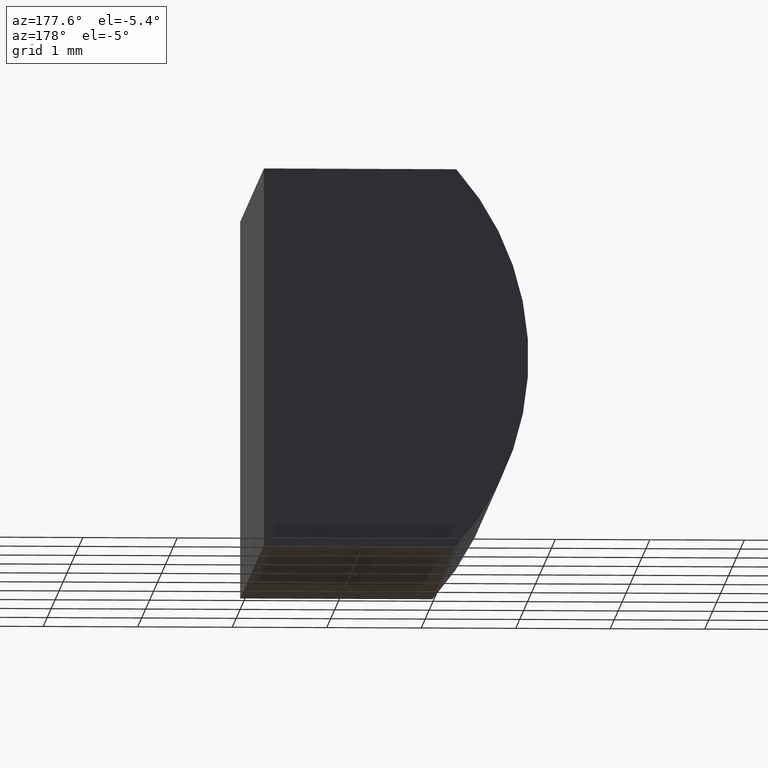
[diagram: clean part render]
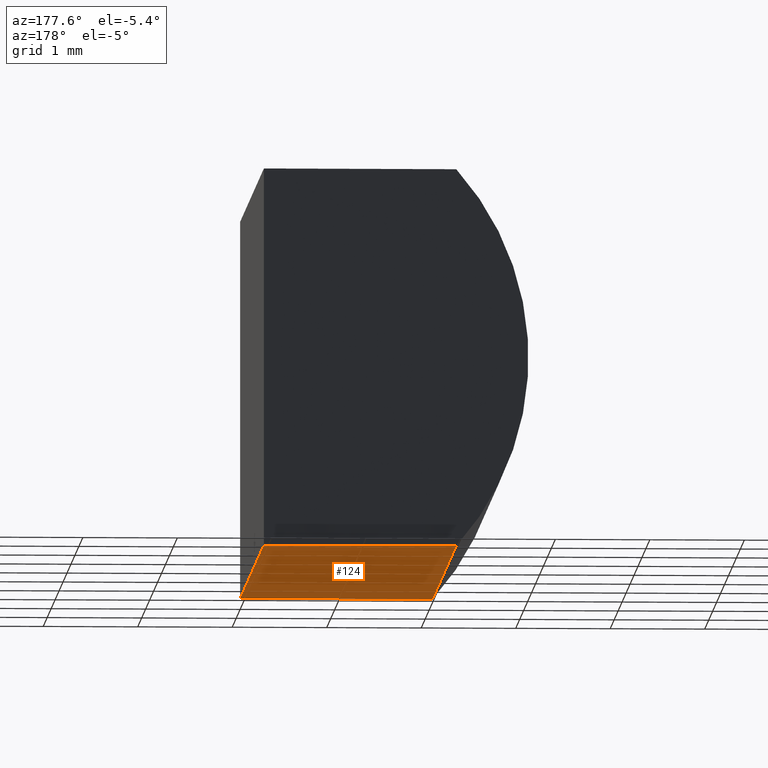
[diagram: same view with one face highlighted and labeled with its STEP entity id]
A machine part, auxiliary view. The second image highlights one B-rep face of the part: STEP entity #124.
In plain terms, the highlighted planar face has unit normal (0, -0, 1).
Its self-contained STEP definition (entity closure, byte-faithful):
#10 = DIRECTION ( 'NONE',  ( -0.0000000000000000000, -1.000000000000000000, -0.0000000000000000000 ) ) ;
#11 = CARTESIAN_POINT ( 'NONE',  ( 0.0000000000000000000, 0.0000000000000000000, 0.0000000000000000000 ) ) ;
#12 = VERTEX_POINT ( 'NONE', #79 ) ;
#22 = LINE ( 'NONE', #202, #25 ) ;
#25 = VECTOR ( 'NONE', #196, 1000.000000000000000 ) ;
#33 = DIRECTION ( 'NONE',  ( -1.000000000000000000, 0.0000000000000000000, 0.0000000000000000000 ) ) ;
#35 = AXIS2_PLACEMENT_3D ( 'NONE', #172, #56, #62 ) ;
#37 = PLANE ( 'NONE',  #35 ) ;
#40 = LINE ( 'NONE', #87, #63 ) ;
#50 = EDGE_CURVE ( 'NONE', #170, #122, #22, .T. ) ;
#54 = FACE_OUTER_BOUND ( 'NONE', #158, .T. ) ;
#56 = DIRECTION ( 'NONE',  ( 0.0000000000000000000, -0.0000000000000000000, 1.000000000000000000 ) ) ;
#62 = DIRECTION ( 'NONE',  ( 1.000000000000000000, 0.0000000000000000000, -0.0000000000000000000 ) ) ;
#63 = VECTOR ( 'NONE', #33, 1000.000000000000000 ) ;
#68 = CARTESIAN_POINT ( 'NONE',  ( -2.036067977499789200, 6.000000000000000000, 0.0000000000000000000 ) ) ;
#76 = CARTESIAN_POINT ( 'NONE',  ( -2.036067977499789200, 6.000000000000000000, 0.0000000000000000000 ) ) ;
#79 = CARTESIAN_POINT ( 'NONE',  ( 0.0000000000000000000, 6.000000000000000000, 0.0000000000000000000 ) ) ;
#86 = EDGE_CURVE ( 'NONE', #12, #170, #201, .T. ) ;
#87 = CARTESIAN_POINT ( 'NONE',  ( 0.0000000000000000000, 6.000000000000000000, 0.0000000000000000000 ) ) ;
#112 = LINE ( 'NONE', #76, #138 ) ;
#116 = CARTESIAN_POINT ( 'NONE',  ( -2.036067977499789200, 0.0000000000000000000, 0.0000000000000000000 ) ) ;
#120 = DIRECTION ( 'NONE',  ( -0.0000000000000000000, -1.000000000000000000, -0.0000000000000000000 ) ) ;
#122 = VERTEX_POINT ( 'NONE', #116 ) ;
#124 = ADVANCED_FACE ( 'NONE', ( #54 ), #37, .F. ) ;
#127 = CARTESIAN_POINT ( 'NONE',  ( 0.0000000000000000000, 6.000000000000000000, 0.0000000000000000000 ) ) ;
#132 = ORIENTED_EDGE ( 'NONE', *, *, #150, .F. ) ;
#138 = VECTOR ( 'NONE', #10, 1000.000000000000000 ) ;
#144 = ORIENTED_EDGE ( 'NONE', *, *, #86, .T. ) ;
#148 = ORIENTED_EDGE ( 'NONE', *, *, #50, .T. ) ;
#150 = EDGE_CURVE ( 'NONE', #12, #162, #40, .T. ) ;
#158 = EDGE_LOOP ( 'NONE', ( #148, #193, #132, #144 ) ) ;
#162 = VERTEX_POINT ( 'NONE', #68 ) ;
#168 = EDGE_CURVE ( 'NONE', #162, #122, #112, .T. ) ;
#170 = VERTEX_POINT ( 'NONE', #11 ) ;
#172 = CARTESIAN_POINT ( 'NONE',  ( 0.0000000000000000000, 6.000000000000000000, 0.0000000000000000000 ) ) ;
#182 = VECTOR ( 'NONE', #120, 1000.000000000000000 ) ;
#193 = ORIENTED_EDGE ( 'NONE', *, *, #168, .F. ) ;
#196 = DIRECTION ( 'NONE',  ( -1.000000000000000000, 0.0000000000000000000, 0.0000000000000000000 ) ) ;
#201 = LINE ( 'NONE', #127, #182 ) ;
#202 = CARTESIAN_POINT ( 'NONE',  ( 0.0000000000000000000, 0.0000000000000000000, 0.0000000000000000000 ) ) ;